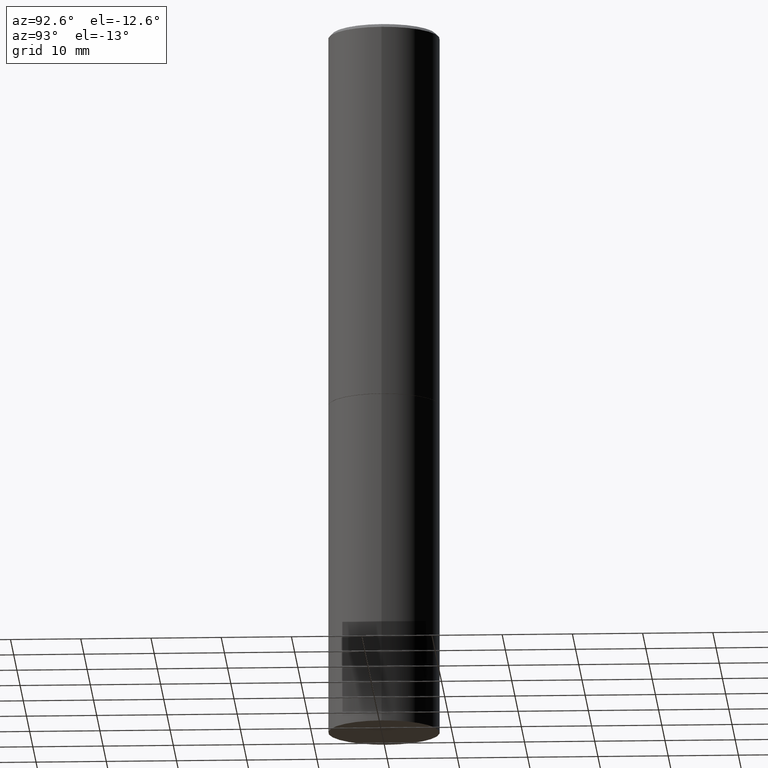
[diagram: clean part render]
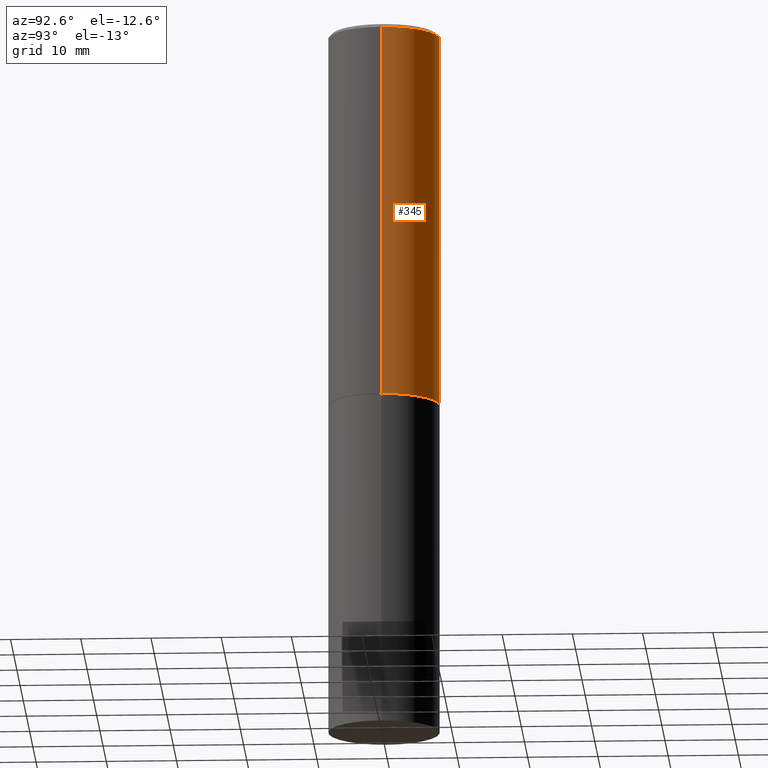
[diagram: same view with one face highlighted and labeled with its STEP entity id]
A machine part, auxiliary view. The second image highlights one B-rep face of the part: STEP entity #345.
In plain terms, the highlighted cylindrical surface (partial cylindrical patch) has radius 7.9375 mm, axis along (-0, 0, 1).
Its self-contained STEP definition (entity closure, byte-faithful):
#8 = EDGE_CURVE ( 'NONE', #320, #131, #229, .T. ) ;
#17 = VECTOR ( 'NONE', #87, 39.37007874015748143 ) ;
#25 = ORIENTED_EDGE ( 'NONE', *, *, #8, .F. ) ;
#34 = CARTESIAN_POINT ( 'NONE',  ( 0.3124999999999998335, -2.213735251080465334E-15, -0.02000000000000007674 ) ) ;
#38 = EDGE_CURVE ( 'NONE', #52, #106, #279, .T. ) ;
#43 = CYLINDRICAL_SURFACE ( 'NONE', #334, 0.3124999999999998890 ) ;
#52 = VERTEX_POINT ( 'NONE', #195 ) ;
#57 = AXIS2_PLACEMENT_3D ( 'NONE', #338, #304, #333 ) ;
#87 = DIRECTION ( 'NONE',  ( -2.445468806185136877E-29, 3.491481338843145188E-15, 1.000000000000000000 ) ) ;
#104 = FACE_OUTER_BOUND ( 'NONE', #186, .T. ) ;
#106 = VERTEX_POINT ( 'NONE', #251 ) ;
#116 = EDGE_CURVE ( 'NONE', #131, #106, #305, .T. ) ;
#118 = CARTESIAN_POINT ( 'NONE',  ( -0.3124999999999998890, 2.220446049250312292E-15, -1.537167215704657391E-29 ) ) ;
#131 = VERTEX_POINT ( 'NONE', #34 ) ;
#133 = ORIENTED_EDGE ( 'NONE', *, *, #116, .F. ) ;
#174 = AXIS2_PLACEMENT_3D ( 'NONE', #204, #238, #319 ) ;
#186 = EDGE_LOOP ( 'NONE', ( #248, #355, #133, #25 ) ) ;
#195 = CARTESIAN_POINT ( 'NONE',  ( -0.3125000000000000000, -1.522421945989535918E-15, -2.123999999999999666 ) ) ;
#197 = DIRECTION ( 'NONE',  ( -2.445468806185136877E-29, 3.491481338843145188E-15, 1.000000000000000000 ) ) ;
#203 = CARTESIAN_POINT ( 'NONE',  ( 0.3125000000000000000, -9.598082200479797386E-15, -2.123999999999999666 ) ) ;
#204 = CARTESIAN_POINT ( 'NONE',  ( 5.194175744337229665E-29, -7.415906363702840616E-15, -2.123999999999999666 ) ) ;
#219 = EDGE_CURVE ( 'NONE', #320, #52, #285, .T. ) ;
#229 = LINE ( 'NONE', #366, #316 ) ;
#238 = DIRECTION ( 'NONE',  ( -2.445468806185136597E-29, 3.491481338843145583E-15, 1.000000000000000000 ) ) ;
#248 = ORIENTED_EDGE ( 'NONE', *, *, #219, .T. ) ;
#251 = CARTESIAN_POINT ( 'NONE',  ( -0.3124999999999998335, 2.112346210000093866E-15, -0.02000000000000007674 ) ) ;
#279 = LINE ( 'NONE', #118, #17 ) ;
#285 = CIRCLE ( 'NONE', #174, 0.3125000000000000000 ) ;
#291 = DIRECTION ( 'NONE',  ( 1.000000000000000000, -6.982962677686266711E-15, 4.876176775795935232E-29 ) ) ;
#304 = DIRECTION ( 'NONE',  ( -2.445468806185136597E-29, 3.491481338843145583E-15, 1.000000000000000000 ) ) ;
#305 = CIRCLE ( 'NONE', #57, 0.3124999999999998335 ) ;
#316 = VECTOR ( 'NONE', #197, 39.37007874015748143 ) ;
#319 = DIRECTION ( 'NONE',  ( 1.000000000000000000, -6.982962677686265133E-15, 0.000000000000000000 ) ) ;
#320 = VERTEX_POINT ( 'NONE', #203 ) ;
#327 = CARTESIAN_POINT ( 'NONE',  ( 0.000000000000000000, 0.000000000000000000, 0.000000000000000000 ) ) ;
#333 = DIRECTION ( 'NONE',  ( 1.000000000000000000, -6.982962677686265133E-15, 0.000000000000000000 ) ) ;
#334 = AXIS2_PLACEMENT_3D ( 'NONE', #327, #353, #291 ) ;
#338 = CARTESIAN_POINT ( 'NONE',  ( 4.890937612370292426E-31, -6.982962677686317493E-17, -0.02000000000000007674 ) ) ;
#345 = ADVANCED_FACE ( 'NONE', ( #104 ), #43, .T. ) ;
#353 = DIRECTION ( 'NONE',  ( -2.445468806185136597E-29, 3.491481338843145583E-15, 1.000000000000000000 ) ) ;
#355 = ORIENTED_EDGE ( 'NONE', *, *, #38, .T. ) ;
#366 = CARTESIAN_POINT ( 'NONE',  ( 0.3124999999999998890, -2.182175836776957558E-15, 1.523805242436229235E-29 ) ) ;